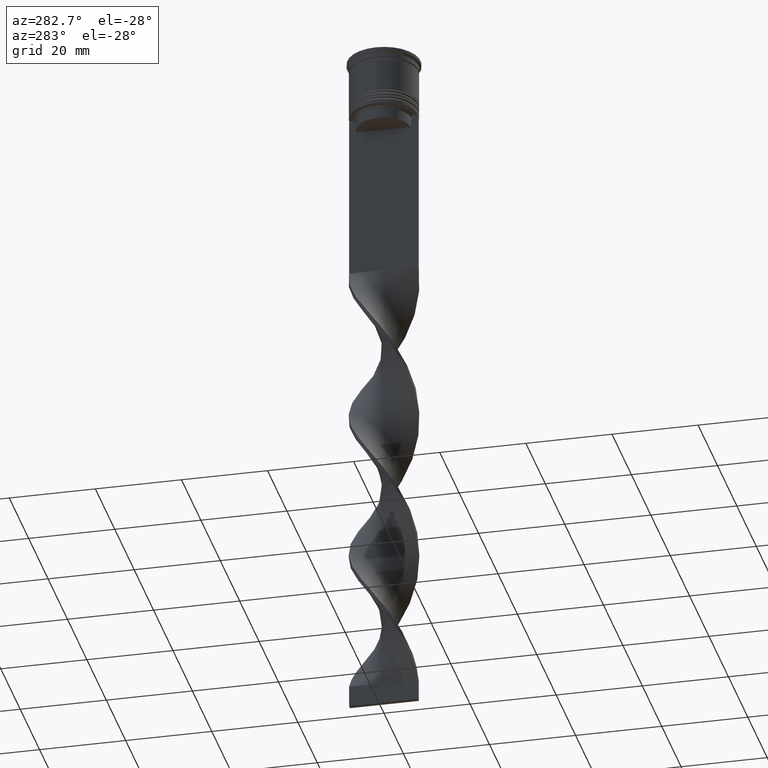
[diagram: clean part render]
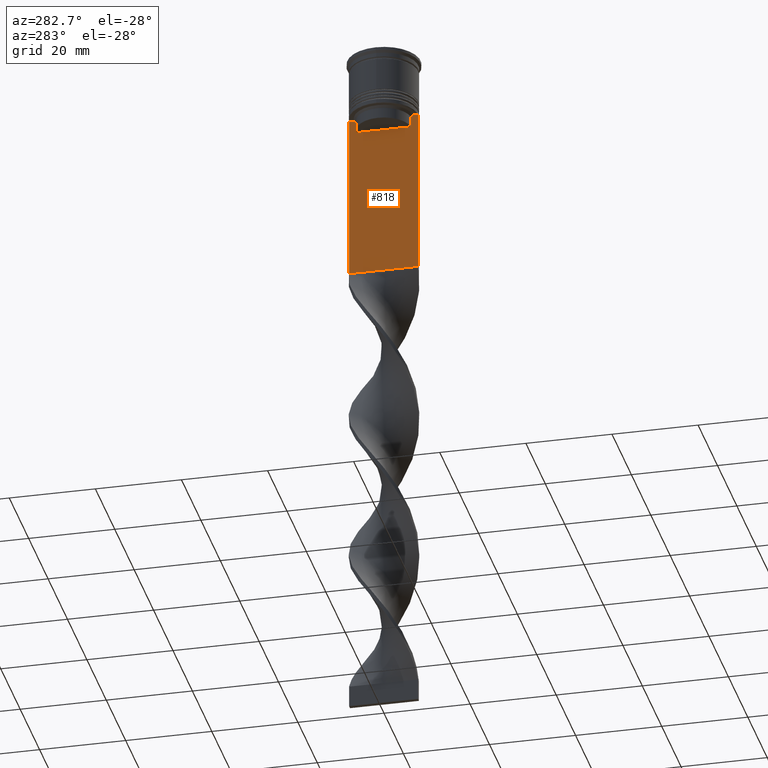
[diagram: same view with one face highlighted and labeled with its STEP entity id]
A machine part, auxiliary view. The second image highlights one B-rep face of the part: STEP entity #818.
In plain terms, the highlighted planar face has unit normal (-1, 0, 0).
Its self-contained STEP definition (entity closure, byte-faithful):
#30 = CARTESIAN_POINT ( 'NONE',  ( -0.4999999999999998890, 6.881860213634098500, -14.00000000000000178 ) ) ;
#68 = VERTEX_POINT ( 'NONE', #3306 ) ;
#89 = CARTESIAN_POINT ( 'NONE',  ( -0.4999999999999998890, -8.000000000000003553, -53.00000000000000000 ) ) ;
#106 = ORIENTED_EDGE ( 'NONE', *, *, #978, .F. ) ;
#153 = EDGE_CURVE ( 'NONE', #3514, #3652, #1524, .T. ) ;
#160 = ORIENTED_EDGE ( 'NONE', *, *, #3634, .T. ) ;
#207 = VECTOR ( 'NONE', #3280, 1000.000000000000000 ) ;
#261 = CARTESIAN_POINT ( 'NONE',  ( -0.4999999999999998890, -8.000000000000003553, -14.00000000000000178 ) ) ;
#279 = LINE ( 'NONE', #3449, #2155 ) ;
#355 = VERTEX_POINT ( 'NONE', #584 ) ;
#438 = VECTOR ( 'NONE', #3239, 1000.000000000000000 ) ;
#490 = DIRECTION ( 'NONE',  ( 0.000000000000000000, -1.000000000000000000, 0.000000000000000000 ) ) ;
#546 = CARTESIAN_POINT ( 'NONE',  ( -0.4999999999999998890, 6.714736947114692711, -14.16668390704818847 ) ) ;
#562 = VERTEX_POINT ( 'NONE', #2665 ) ;
#565 = VECTOR ( 'NONE', #2037, 1000.000000000000000 ) ;
#584 = CARTESIAN_POINT ( 'NONE',  ( -0.4999999999999998890, 6.380438856379708312, -14.50000000000000000 ) ) ;
#610 = CARTESIAN_POINT ( 'NONE',  ( -0.4999999999999998890, 6.380438856379708312, -17.00000000000000000 ) ) ;
#620 = LINE ( 'NONE', #1454, #565 ) ;
#775 = ORIENTED_EDGE ( 'NONE', *, *, #2266, .F. ) ;
#818 = ADVANCED_FACE ( 'NONE', ( #1232 ), #1193, .T. ) ;
#854 = DIRECTION ( 'NONE',  ( 0.000000000000000000, -1.000000000000000000, 0.000000000000000000 ) ) ;
#878 = DIRECTION ( 'NONE',  ( -1.000000000000000000, 0.000000000000000000, 0.000000000000000000 ) ) ;
#880 = ORIENTED_EDGE ( 'NONE', *, *, #153, .F. ) ;
#927 = CARTESIAN_POINT ( 'NONE',  ( -0.4999999999999998890, 7.884161337770806632, -14.00000000000000178 ) ) ;
#971 = VERTEX_POINT ( 'NONE', #1918 ) ;
#978 = EDGE_CURVE ( 'NONE', #2325, #1997, #2702, .T. ) ;
#983 = EDGE_CURVE ( 'NONE', #2634, #971, #1613, .T. ) ;
#1001 = CARTESIAN_POINT ( 'NONE',  ( -0.4999999999999998890, -6.380438856379708312, -17.00000000000000000 ) ) ;
#1036 = CARTESIAN_POINT ( 'NONE',  ( -0.4999999999999998890, -6.547597841511246131, -14.33335192438652328 ) ) ;
#1042 = CARTESIAN_POINT ( 'NONE',  ( -0.4999999999999998890, -8.000000000000003553, -14.00000000000000178 ) ) ;
#1043 = EDGE_CURVE ( 'NONE', #2487, #2836, #620, .T. ) ;
#1086 = B_SPLINE_CURVE_WITH_KNOTS ( 'NONE', 3,
 ( #30, #546, #2587, #3197 ),
 .UNSPECIFIED., .F., .F.,
 ( 4, 4 ),
 ( 0.01172465562756038263, 0.01243276816391822651 ),
 .UNSPECIFIED. ) ;
#1091 = EDGE_CURVE ( 'NONE', #355, #3514, #279, .T. ) ;
#1154 = CARTESIAN_POINT ( 'NONE',  ( -0.4999999999999998890, -6.380438856379708312, -14.50000000000000000 ) ) ;
#1156 = VECTOR ( 'NONE', #2720, 1000.000000000000000 ) ;
#1193 = PLANE ( 'NONE',  #3125 ) ;
#1232 = FACE_OUTER_BOUND ( 'NONE', #1387, .T. ) ;
#1238 = EDGE_CURVE ( 'NONE', #3652, #2325, #2084, .T. ) ;
#1287 = CARTESIAN_POINT ( 'NONE',  ( -0.4999999999999998890, 7.999999999999996447, 2.031219541881394530 ) ) ;
#1293 = CARTESIAN_POINT ( 'NONE',  ( -0.4999999999999998890, -6.881860213634098500, -14.00000000000000178 ) ) ;
#1346 = LINE ( 'NONE', #2510, #2865 ) ;
#1387 = EDGE_LOOP ( 'NONE', ( #775, #2306, #1717, #160, #2347, #2021, #2914, #3389, #106, #2320, #880, #1440 ) ) ;
#1440 = ORIENTED_EDGE ( 'NONE', *, *, #1091, .F. ) ;
#1454 = CARTESIAN_POINT ( 'NONE',  ( -0.4999999999999998890, -8.000000000000003553, -53.00000000000000000 ) ) ;
#1463 = CARTESIAN_POINT ( 'NONE',  ( -0.4999999999999998890, -6.380438856379708312, 0.000000000000000000 ) ) ;
#1502 = CARTESIAN_POINT ( 'NONE',  ( -0.4999999999999998890, -8.000000000000003553, 2.031219541881394530 ) ) ;
#1524 = LINE ( 'NONE', #2666, #207 ) ;
#1568 = EDGE_CURVE ( 'NONE', #3454, #68, #2244, .T. ) ;
#1613 = LINE ( 'NONE', #2756, #2454 ) ;
#1632 = CARTESIAN_POINT ( 'NONE',  ( -0.4999999999999998890, -6.380438856379708312, -14.50000000000000000 ) ) ;
#1667 = VECTOR ( 'NONE', #854, 1000.000000000000000 ) ;
#1717 = ORIENTED_EDGE ( 'NONE', *, *, #2384, .F. ) ;
#1882 = DIRECTION ( 'NONE',  ( 0.000000000000000000, -1.000000000000000000, 0.000000000000000000 ) ) ;
#1918 = CARTESIAN_POINT ( 'NONE',  ( -0.4999999999999998890, -8.000000000000003553, -14.00000000000000178 ) ) ;
#1997 = VERTEX_POINT ( 'NONE', #2993 ) ;
#2021 = ORIENTED_EDGE ( 'NONE', *, *, #3222, .F. ) ;
#2037 = DIRECTION ( 'NONE',  ( 0.000000000000000000, 1.000000000000000000, 0.000000000000000000 ) ) ;
#2084 = LINE ( 'NONE', #1463, #438 ) ;
#2155 = VECTOR ( 'NONE', #2586, 1000.000000000000000 ) ;
#2244 = LINE ( 'NONE', #3103, #2576 ) ;
#2266 = EDGE_CURVE ( 'NONE', #68, #355, #1086, .T. ) ;
#2306 = ORIENTED_EDGE ( 'NONE', *, *, #1568, .F. ) ;
#2320 = ORIENTED_EDGE ( 'NONE', *, *, #1238, .F. ) ;
#2325 = VERTEX_POINT ( 'NONE', #1154 ) ;
#2347 = ORIENTED_EDGE ( 'NONE', *, *, #1043, .F. ) ;
#2384 = EDGE_CURVE ( 'NONE', #562, #3454, #2604, .T. ) ;
#2398 = DIRECTION ( 'NONE',  ( 0.000000000000000000, 0.000000000000000000, 1.000000000000000000 ) ) ;
#2454 = VECTOR ( 'NONE', #1882, 1000.000000000000000 ) ;
#2487 = VERTEX_POINT ( 'NONE', #89 ) ;
#2510 = CARTESIAN_POINT ( 'NONE',  ( -0.4999999999999998890, -8.000000000000003553, 2.031219541881394530 ) ) ;
#2576 = VECTOR ( 'NONE', #490, 1000.000000000000000 ) ;
#2586 = DIRECTION ( 'NONE',  ( 0.000000000000000000, 0.000000000000000000, -1.000000000000000000 ) ) ;
#2587 = CARTESIAN_POINT ( 'NONE',  ( -0.4999999999999998890, 6.547597841304911626, -14.33335192459222718 ) ) ;
#2604 = LINE ( 'NONE', #261, #1667 ) ;
#2634 = VERTEX_POINT ( 'NONE', #3500 ) ;
#2665 = CARTESIAN_POINT ( 'NONE',  ( -0.4999999999999998890, 7.999999999999996447, -14.00000000000000178 ) ) ;
#2666 = CARTESIAN_POINT ( 'NONE',  ( -0.4999999999999998890, 6.399999999999999467, -17.00000000000000000 ) ) ;
#2702 = B_SPLINE_CURVE_WITH_KNOTS ( 'NONE', 3,
 ( #1632, #1036, #3368, #1293 ),
 .UNSPECIFIED., .F., .F.,
 ( 4, 4 ),
 ( 0.02996184199614749730, 0.03067452609193703841 ),
 .UNSPECIFIED. ) ;
#2720 = DIRECTION ( 'NONE',  ( 0.000000000000000000, 0.000000000000000000, -1.000000000000000000 ) ) ;
#2756 = CARTESIAN_POINT ( 'NONE',  ( -0.4999999999999998890, -8.000000000000003553, -14.00000000000000178 ) ) ;
#2836 = VERTEX_POINT ( 'NONE', #3329 ) ;
#2865 = VECTOR ( 'NONE', #3675, 1000.000000000000000 ) ;
#2914 = ORIENTED_EDGE ( 'NONE', *, *, #983, .F. ) ;
#2993 = CARTESIAN_POINT ( 'NONE',  ( -0.4999999999999998890, -6.881860213634098500, -14.00000000000000178 ) ) ;
#3054 = DIRECTION ( 'NONE',  ( 0.000000000000000000, -1.000000000000000000, 0.000000000000000000 ) ) ;
#3103 = CARTESIAN_POINT ( 'NONE',  ( -0.4999999999999998890, -8.000000000000003553, -14.00000000000000178 ) ) ;
#3125 = AXIS2_PLACEMENT_3D ( 'NONE', #1502, #878, #2398 ) ;
#3175 = EDGE_CURVE ( 'NONE', #1997, #2634, #3654, .T. ) ;
#3197 = CARTESIAN_POINT ( 'NONE',  ( -0.4999999999999998890, 6.380438856379708312, -14.50000000000000000 ) ) ;
#3222 = EDGE_CURVE ( 'NONE', #971, #2487, #1346, .T. ) ;
#3239 = DIRECTION ( 'NONE',  ( -0.000000000000000000, -0.000000000000000000, 1.000000000000000000 ) ) ;
#3269 = LINE ( 'NONE', #1287, #1156 ) ;
#3280 = DIRECTION ( 'NONE',  ( 0.000000000000000000, -1.000000000000000000, 0.000000000000000000 ) ) ;
#3306 = CARTESIAN_POINT ( 'NONE',  ( -0.4999999999999998890, 6.881860213634098500, -14.00000000000000178 ) ) ;
#3329 = CARTESIAN_POINT ( 'NONE',  ( -0.4999999999999998890, 7.999999999999996447, -53.00000000000000000 ) ) ;
#3368 = CARTESIAN_POINT ( 'NONE',  ( -0.4999999999999998890, -6.714736947305992132, -14.16668390685738999 ) ) ;
#3389 = ORIENTED_EDGE ( 'NONE', *, *, #3175, .F. ) ;
#3449 = CARTESIAN_POINT ( 'NONE',  ( -0.4999999999999998890, 6.380438856379708312, 0.000000000000000000 ) ) ;
#3454 = VERTEX_POINT ( 'NONE', #927 ) ;
#3500 = CARTESIAN_POINT ( 'NONE',  ( -0.4999999999999998890, -7.884161337770806632, -14.00000000000000178 ) ) ;
#3514 = VERTEX_POINT ( 'NONE', #610 ) ;
#3600 = VECTOR ( 'NONE', #3054, 1000.000000000000000 ) ;
#3634 = EDGE_CURVE ( 'NONE', #562, #2836, #3269, .T. ) ;
#3652 = VERTEX_POINT ( 'NONE', #1001 ) ;
#3654 = LINE ( 'NONE', #1042, #3600 ) ;
#3675 = DIRECTION ( 'NONE',  ( 0.000000000000000000, 0.000000000000000000, -1.000000000000000000 ) ) ;